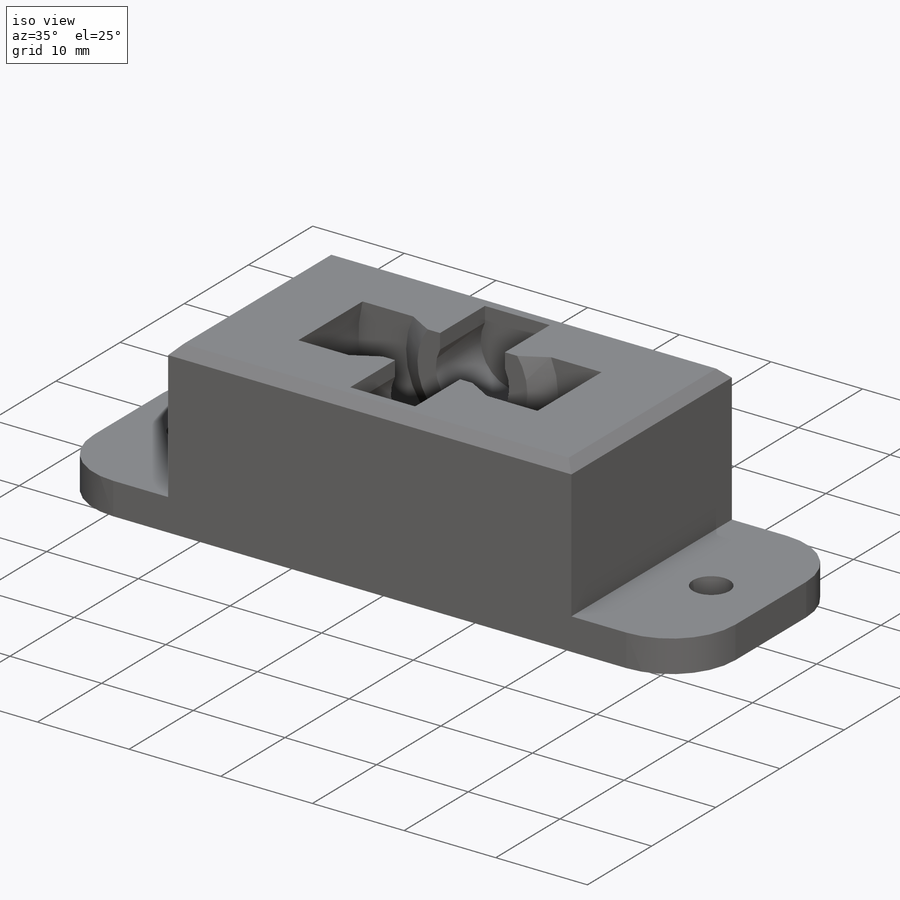
[diagram: iso view]
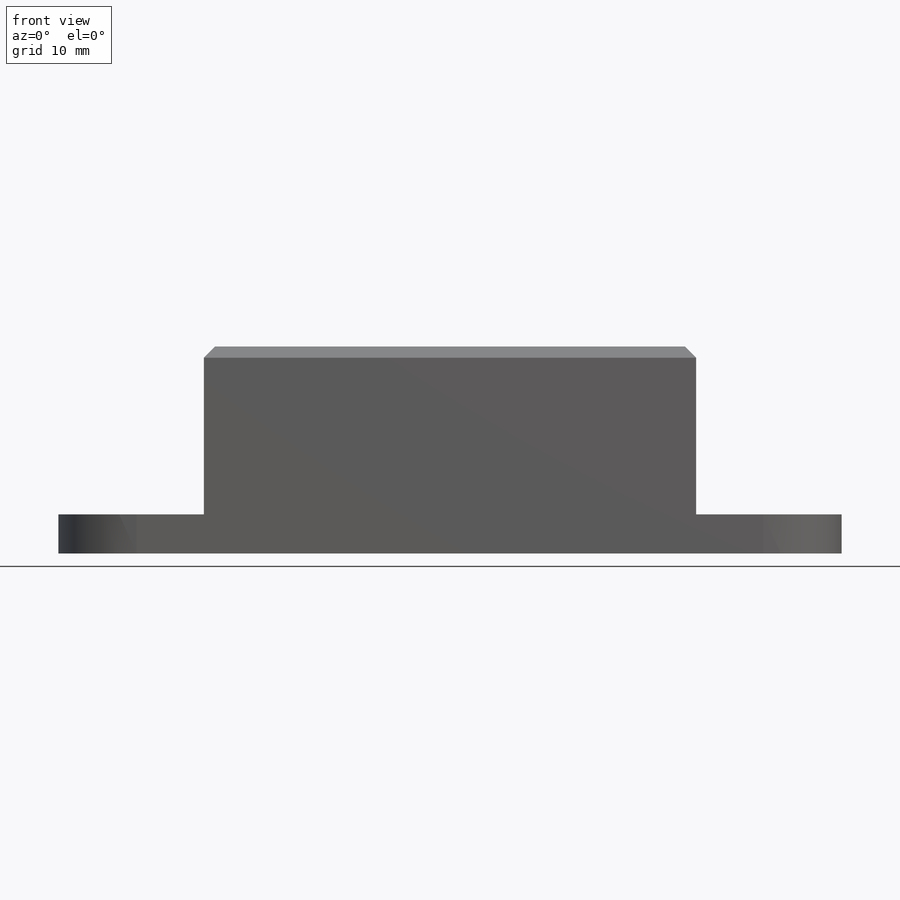
[diagram: front view]
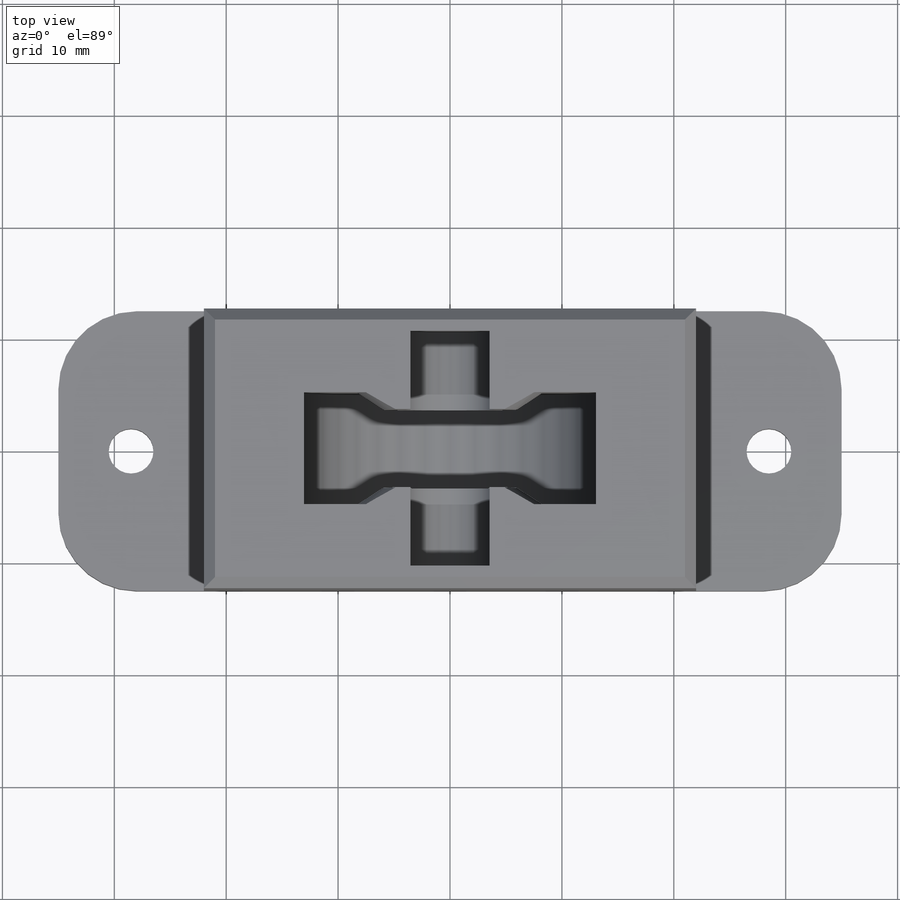
[diagram: top view]
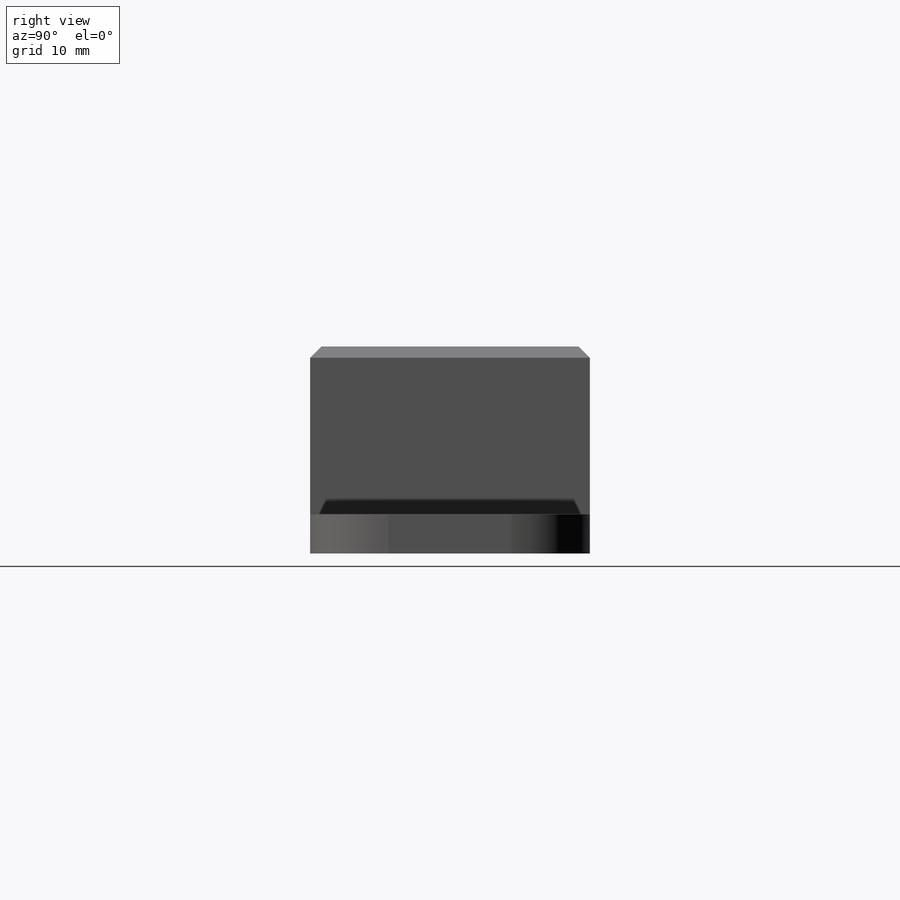
[diagram: right view]
SOLIDWORKS PART (.sldprt)
format: sldprt  version: not decoded by parser v0  size: 340,992 bytes
history: native  units: mm
features: sketch x8, extrude x4, plane x3, cut_extrude x3, material x1, revolve x1, mirror x1, fillet x1, chamfer x1 (+12 scaffold rows collapsed)
feature tree (35):
  scaffold x12  (default folders/planes/origin — collapsed)
  material  "Nylon 101"
  sketch  "Sketch1"  dims[c1.D1=~25.059715mm c1.D3=30.1625mm c1.D5=22.0mm c1.D8=13.5mm c2.D1=36.6mm c2.D2=12.7mm c2.D4=22.0mm c2.D6=10.0mm c2.D7=4.0mm c3.D1=21.0mm c3.D9=10.0mm c3.D10=70.0mm c3.D11=3.5mm c3.D2=12.5mm]
  extrude  "Boss-Extrude1"  Depth=25mm
  plane  "Plane1"  Offset=5mm
  sketch  "Sketch2"  dims[D1=22.0mm D2=4.0mm D3=9.5mm]
  extrude  "Boss-Extrude2"  [1 undecoded]
  plane  "Plane2"  Offset=5mm
  sketch  "Sketch3"  dims[D1=0.0mm]
  extrude  "Boss-Extrude3"  [1 undecoded]
  plane  "Plane3"
  sketch  "Sketch4"  dims[D1=2.0mm D2=7.0mm D3=4.0mm]
  revolve  "Revolve1"  Angle=360deg
  sketch  "Sketch5"  dims[D1=0.0mm]
  cut_extrude  "Cut-Extrude1"  Depth=10mm
  sketch  "Sketch6"
  cut_extrude  "Cut-Extrude2"  [1 undecoded]
  sketch  "Sketch7"  dims[D1=20.0mm]
  extrude  "Boss-Extrude4"  Depth=2mm
  mirror  "Mirror1"
  fillet  "Fillet1"  Radius=7mm
  sketch  "Sketch8"  dims[D1=4.0mm]
  cut_extrude  "Cut-Extrude3"  Depth=40mm
  chamfer  "Chamfer1"  Distance=1mm Angle=45deg
decode coverage: 14 of 19 modeling features carry decoded parameters
note: ~ marks probable driven/reference dimensions
note: 3 parameter values undecoded
summary: no parameter record found for 3 features
note: suppression state not decoded; provenance and decode notes live in map.json
